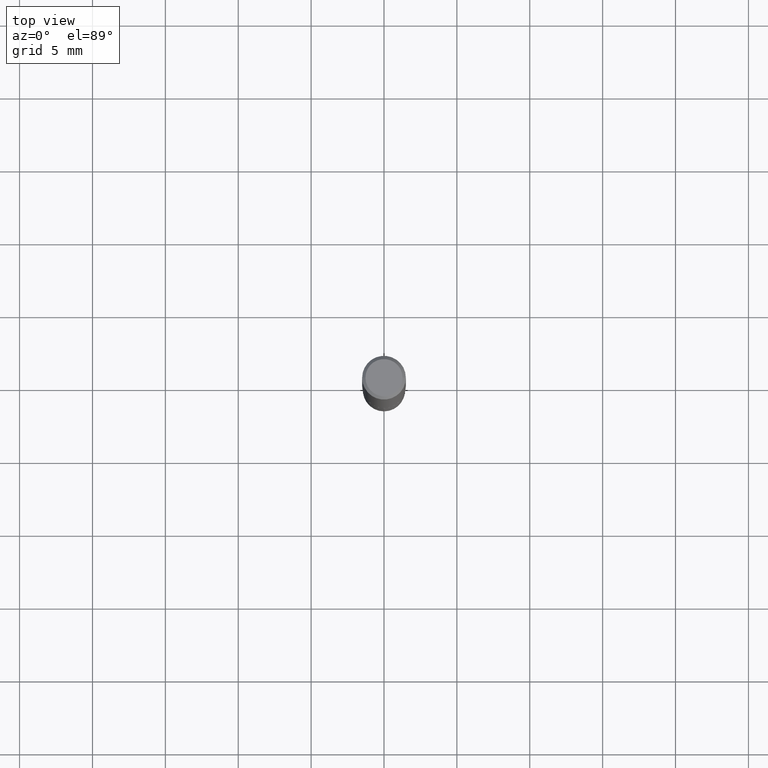
[diagram: clean part render]
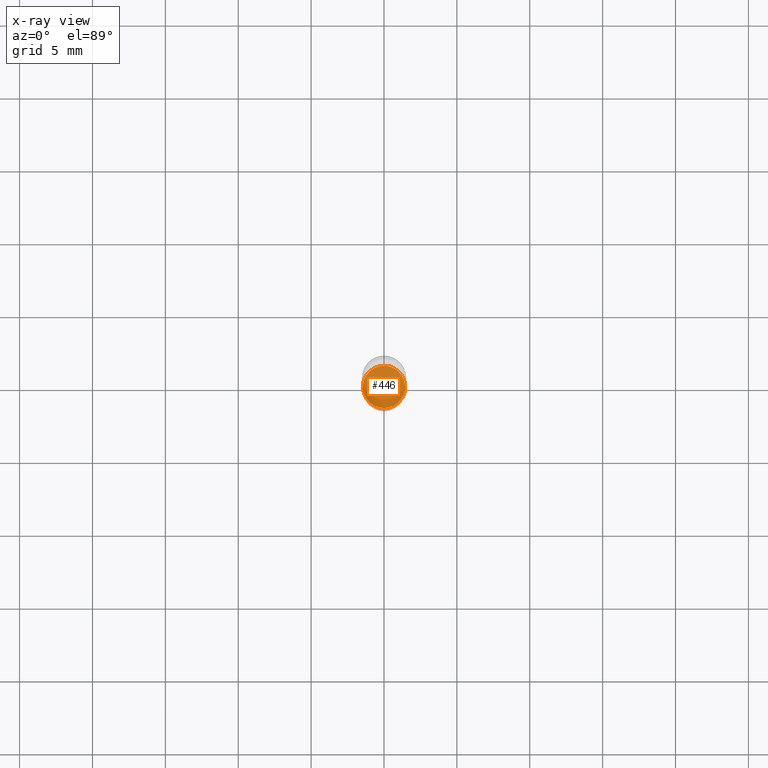
[diagram: x-ray — body ghosted, one internal face saturated and labeled with its STEP entity id]
A machine part, top view, then the same camera in x-ray: the body is ghosted and one INTERNAL B-rep face — a face not visible from any outside direction — is saturated and labeled: STEP entity #446.
In plain terms, the highlighted planar face has unit normal (0, -0, -1).
Its self-contained STEP definition (entity closure, byte-faithful):
#10 = FACE_OUTER_BOUND ( 'NONE', #116, .T. ) ;
#42 = DIRECTION ( 'NONE',  ( 6.982962677686265922E-15, 1.000000000000000000, -3.491451878568109799E-15 ) ) ;
#78 = AXIS2_PLACEMENT_3D ( 'NONE', #376, #374, #312 ) ;
#86 = AXIS2_PLACEMENT_3D ( 'NONE', #319, #459, #42 ) ;
#88 = EDGE_CURVE ( 'NONE', #334, #108, #183, .T. ) ;
#96 = CIRCLE ( 'NONE', #78, 0.05709999999999999798 ) ;
#97 = DIRECTION ( 'NONE',  ( -6.982962677686265133E-15, -1.000000000000000000, 4.784322230585399479E-15 ) ) ;
#108 = VERTEX_POINT ( 'NONE', #258 ) ;
#116 = EDGE_LOOP ( 'NONE', ( #130, #297 ) ) ;
#130 = ORIENTED_EDGE ( 'NONE', *, *, #88, .T. ) ;
#134 = DIRECTION ( 'NONE',  ( -2.445489378185241451E-29, 3.491451878568109799E-15, 1.000000000000000000 ) ) ;
#159 = PLANE ( 'NONE',  #86 ) ;
#183 = CIRCLE ( 'NONE', #317, 0.05709999999999999798 ) ;
#188 = CARTESIAN_POINT ( 'NONE',  ( -3.987271688958501652E-16, -0.05710000000000506337, -1.452799999999999647 ) ) ;
#258 = CARTESIAN_POINT ( 'NONE',  ( 4.057199021190649179E-16, 0.05709999999999492565, -1.452800000000000091 ) ) ;
#282 = EDGE_CURVE ( 'NONE', #108, #334, #96, .T. ) ;
#297 = ORIENTED_EDGE ( 'NONE', *, *, #282, .T. ) ;
#312 = DIRECTION ( 'NONE',  ( -6.982962677686265133E-15, -1.000000000000000000, 4.784322230585399479E-15 ) ) ;
#317 = AXIS2_PLACEMENT_3D ( 'NONE', #469, #134, #97 ) ;
#319 = CARTESIAN_POINT ( 'NONE',  ( 3.552777081625765848E-29, -5.072424089071321929E-15, -1.452799999999999869 ) ) ;
#334 = VERTEX_POINT ( 'NONE', #188 ) ;
#374 = DIRECTION ( 'NONE',  ( -2.445489378185241451E-29, 3.491451878568109799E-15, 1.000000000000000000 ) ) ;
#376 = CARTESIAN_POINT ( 'NONE',  ( 3.552777081625765848E-29, -5.072424089071321929E-15, -1.452799999999999869 ) ) ;
#446 = ADVANCED_FACE ( 'NONE', ( #10 ), #159, .F. ) ;
#459 = DIRECTION ( 'NONE',  ( 2.445489378185241171E-29, -3.491451878568109799E-15, -1.000000000000000000 ) ) ;
#469 = CARTESIAN_POINT ( 'NONE',  ( 3.552777081625765848E-29, -5.072424089071321929E-15, -1.452799999999999869 ) ) ;